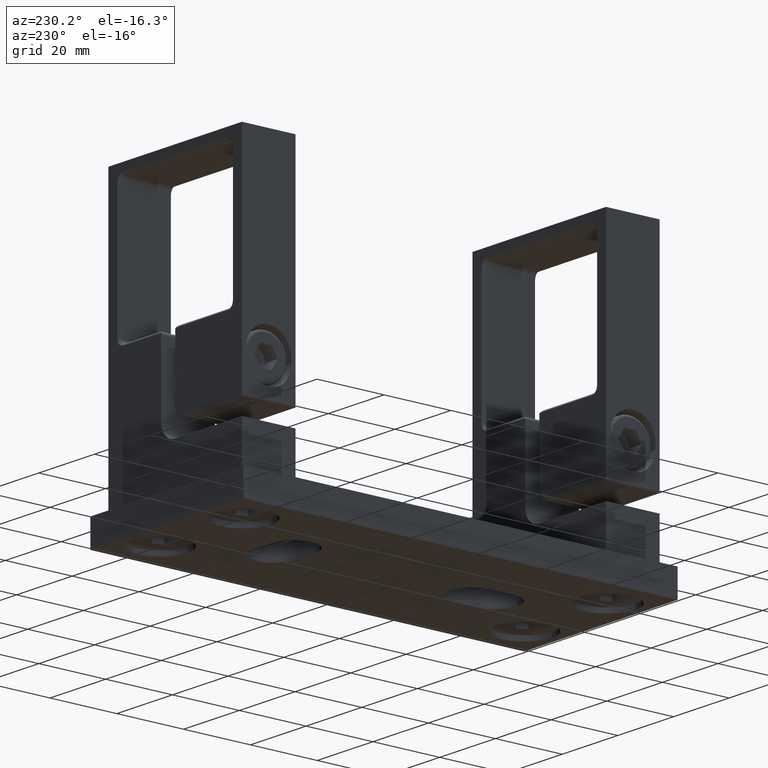
[diagram: clean part render]
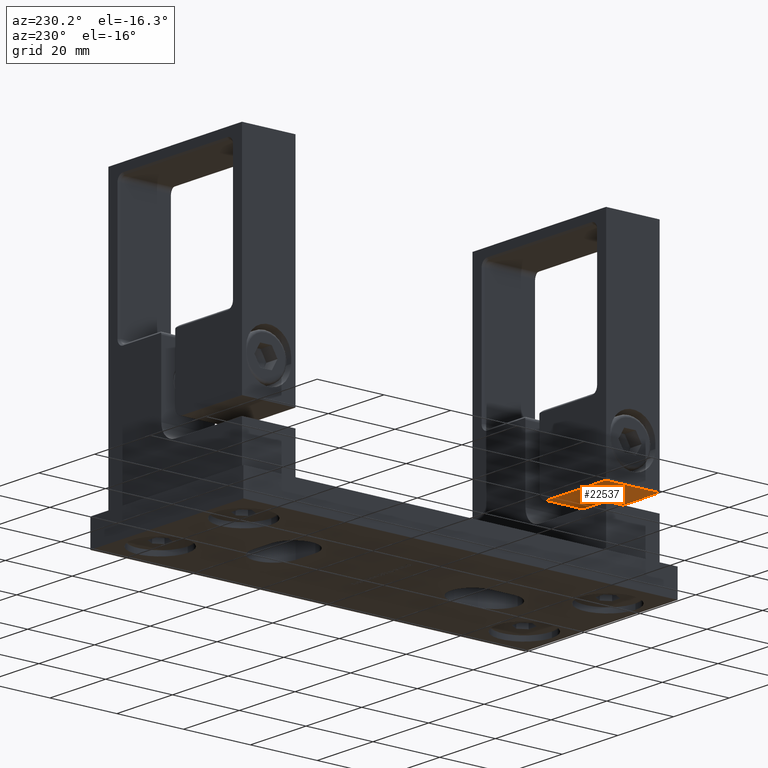
[diagram: same view with one face highlighted and labeled with its STEP entity id]
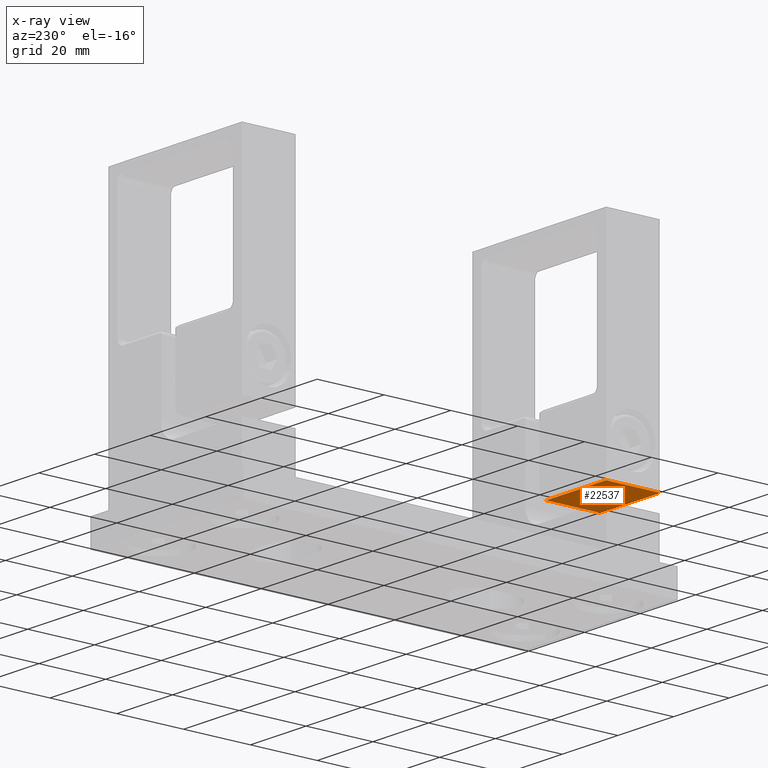
[diagram: x-ray of the same camera — body ghosted, the highlighted face saturated]
A machine part, auxiliary view. The second image highlights one B-rep face of the part: STEP entity #22537.
The next image is the same camera in x-ray: the body ghosted, the highlighted face saturated — about 12% of this face is hidden behind the body in this view.
In plain terms, the highlighted planar face has unit normal (0, 0, 1).
Its self-contained STEP definition (entity closure, byte-faithful):
#588 = AXIS2_PLACEMENT_3D ( 'NONE', #3734, #7498, #2007 ) ;
#1249 = VECTOR ( 'NONE', #20744, 1000.000000000000000 ) ;
#1932 = FACE_OUTER_BOUND ( 'NONE', #15960, .T. ) ;
#2007 = DIRECTION ( 'NONE',  ( 0.0000000000000000000, 0.0000000000000000000, 1.000000000000000000 ) ) ;
#2667 = CARTESIAN_POINT ( 'NONE',  ( 7.999999999999992900, 18.00000000000000400, 23.99999999999997900 ) ) ;
#3734 = CARTESIAN_POINT ( 'NONE',  ( 7.999999999999992900, 18.00000000000000400, 23.99999999999997900 ) ) ;
#4072 = VERTEX_POINT ( 'NONE', #17568 ) ;
#4275 = LINE ( 'NONE', #14294, #8255 ) ;
#5863 = CARTESIAN_POINT ( 'NONE',  ( 7.999999999999992900, 18.00000000000000400, 2.500000000000014200 ) ) ;
#6823 = EDGE_CURVE ( 'NONE', #4072, #16934, #4275, .T. ) ;
#7498 = DIRECTION ( 'NONE',  ( 0.0000000000000000000, 1.000000000000000000, 0.0000000000000000000 ) ) ;
#8255 = VECTOR ( 'NONE', #10388, 1000.000000000000000 ) ;
#9384 = CARTESIAN_POINT ( 'NONE',  ( -7.999999999999986700, 18.00000000000000400, 24.00000000000000000 ) ) ;
#10388 = DIRECTION ( 'NONE',  ( 0.0000000000000000000, 0.0000000000000000000, -1.000000000000000000 ) ) ;
#10554 = LINE ( 'NONE', #2667, #12524 ) ;
#10647 = VERTEX_POINT ( 'NONE', #9384 ) ;
#11255 = VECTOR ( 'NONE', #22824, 1000.000000000000000 ) ;
#11430 = EDGE_CURVE ( 'NONE', #16934, #15856, #15433, .T. ) ;
#12524 = VECTOR ( 'NONE', #13433, 1000.000000000000000 ) ;
#12573 = LINE ( 'NONE', #15383, #1249 ) ;
#12934 = ORIENTED_EDGE ( 'NONE', *, *, #17719, .T. ) ;
#13402 = ORIENTED_EDGE ( 'NONE', *, *, #19168, .T. ) ;
#13433 = DIRECTION ( 'NONE',  ( -1.000000000000000000, 0.0000000000000000000, 0.0000000000000000000 ) ) ;
#14294 = CARTESIAN_POINT ( 'NONE',  ( 7.999999999999992900, 18.00000000000000400, 23.99999999999997900 ) ) ;
#15383 = CARTESIAN_POINT ( 'NONE',  ( -7.999999999999986700, 18.00000000000000400, 24.00000000000000000 ) ) ;
#15433 = LINE ( 'NONE', #17505, #11255 ) ;
#15856 = VERTEX_POINT ( 'NONE', #20310 ) ;
#15960 = EDGE_LOOP ( 'NONE', ( #12934, #20355, #21887, #13402 ) ) ;
#16934 = VERTEX_POINT ( 'NONE', #5863 ) ;
#17505 = CARTESIAN_POINT ( 'NONE',  ( 7.999999999999992900, 18.00000000000000400, 2.500000000000014200 ) ) ;
#17568 = CARTESIAN_POINT ( 'NONE',  ( 7.999999999999992900, 18.00000000000000400, 23.99999999999997900 ) ) ;
#17719 = EDGE_CURVE ( 'NONE', #10647, #15856, #12573, .T. ) ;
#19168 = EDGE_CURVE ( 'NONE', #4072, #10647, #10554, .T. ) ;
#20310 = CARTESIAN_POINT ( 'NONE',  ( -7.999999999999992900, 18.00000000000000400, 2.500000000000008400 ) ) ;
#20355 = ORIENTED_EDGE ( 'NONE', *, *, #11430, .F. ) ;
#20744 = DIRECTION ( 'NONE',  ( 0.0000000000000000000, 0.0000000000000000000, -1.000000000000000000 ) ) ;
#21887 = ORIENTED_EDGE ( 'NONE', *, *, #6823, .F. ) ;
#21985 = PLANE ( 'NONE',  #588 ) ;
#22537 = ADVANCED_FACE ( 'NONE', ( #1932 ), #21985, .F. ) ;
#22824 = DIRECTION ( 'NONE',  ( -1.000000000000000000, 0.0000000000000000000, 0.0000000000000000000 ) ) ;